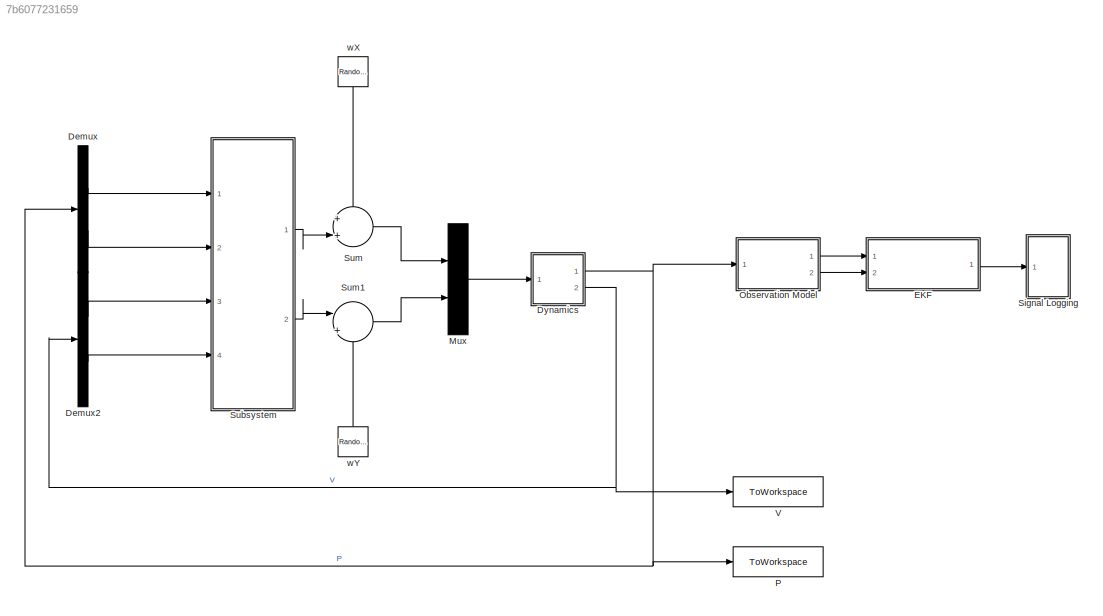
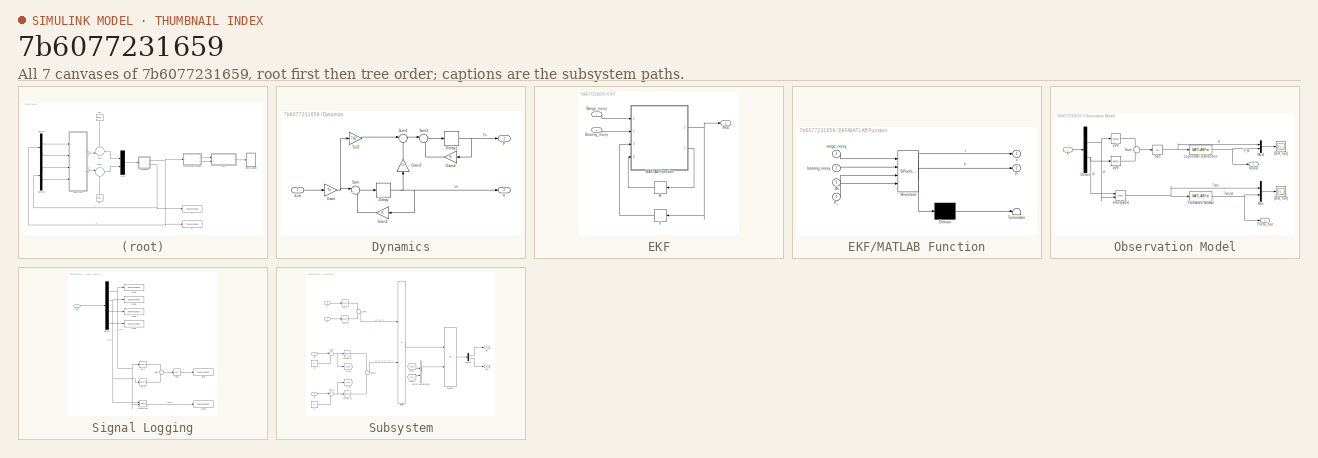
[diagram: thumbnail index - all 7 canvases of the model, root first then tree order]
MODEL slx_7b6077231659
KIND model
CONFIG AbsTol = auto
CONFIG EnableMultiTasking = off
CONFIG FixedStep = Ts
CONFIG MaxStep = auto
CONFIG MinStep = auto
CONFIG RelTol = 1e-3
CONFIG SampleTimeConstraint = Unconstrained
CONFIG Solver = FixedStepDiscrete
CONFIG SolverName = FixedStepDiscrete
CONFIG StartTime = 0.0
CONFIG StopTime = TFinal
BLOCK [Demux] Demux
  DisplayOption = bar
  Outputs = 2
  Ports = [1, 2]
BLOCK [Demux] Demux2
  DisplayOption = bar
  Outputs = 2
  Ports = [1, 2]
BLOCK [SubSystem] Dynamics
  Ports = [1, 2]
  RequestExecContextInheritance = off
BLOCK [Delay] Dynamics/Delay
  DelayLength = 1
  InitialCondition = 0
  InputPortMap = u0
  Ports = [1, 1]
BLOCK [Delay] Dynamics/Delay1
  DelayLength = 1
  InitialCondition = 0
  InputPortMap = u0
  Ports = [1, 1]
BLOCK [Gain] Dynamics/Gain
  Gain = Ts
  OutDataTypeStr = Inherit: Inherit via internal rule
  ParamDataTypeStr = Inherit: Inherit via internal rule
  SaturateOnIntegerOverflow = off
BLOCK [Gain] Dynamics/Gain1
  OutDataTypeStr = Inherit: Inherit via internal rule
  ParamDataTypeStr = Inherit: Inherit via internal rule
  SaturateOnIntegerOverflow = off
BLOCK [Gain] Dynamics/Gain3
  Gain = Ts
  OutDataTypeStr = Inherit: Inherit via internal rule
  ParamDataTypeStr = Inherit: Inherit via internal rule
  SaturateOnIntegerOverflow = off
BLOCK [Gain] Dynamics/Gain4
  OutDataTypeStr = Inherit: Inherit via internal rule
  ParamDataTypeStr = Inherit: Inherit via internal rule
  SaturateOnIntegerOverflow = off
BLOCK [Outport] Dynamics/P
  IconDisplay = Port number
BLOCK [Sum] Dynamics/Sum
  IconShape = round
  InputSameDT = off
  Inputs = |++
  OutDataTypeStr = Inherit: Inherit via internal rule
  Ports = [2, 1]
  SaturateOnIntegerOverflow = off
BLOCK [Sum] Dynamics/Sum1
  IconShape = round
  InputSameDT = off
  Inputs = |++
  OutDataTypeStr = Inherit: Inherit via internal rule
  Ports = [2, 1]
  SaturateOnIntegerOverflow = off
BLOCK [Sum] Dynamics/Sum2
  IconShape = round
  InputSameDT = off
  Inputs = |++
  OutDataTypeStr = Inherit: Inherit via internal rule
  Ports = [2, 1]
  SaturateOnIntegerOverflow = off
BLOCK [Gain] Dynamics/Ts//2
  Gain = Ts/2
  OutDataTypeStr = Inherit: Inherit via internal rule
  ParamDataTypeStr = Inherit: Inherit via internal rule
  SaturateOnIntegerOverflow = off
BLOCK [Outport] Dynamics/V
  IconDisplay = Port number
  Port = 2
BLOCK [Inport] Dynamics/a+w
  IconDisplay = Port number
BLOCK [SubSystem] EKF
  Ports = [2, 1]
  RequestExecContextInheritance = off
BLOCK [Inport] EKF/Bearing_noisy
  IconDisplay = Port number
  Port = 2
BLOCK [Delay] EKF/M
  DelayLength = 1
  InitialCondition = zeros(4,4)
  InputPortMap = u0
  Ports = [1, 1]
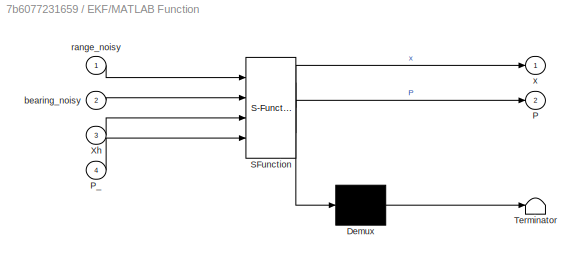
BLOCK [SubSystem] EKF/MATLAB Function
  ErrorFcn = Stateflow.Translate.translate
  PermitHierarchicalResolution = ExplicitOnly
  Ports = [4, 2]
  RequestExecContextInheritance = off
  SFBlockType = MATLAB Function
  TreatAsAtomicUnit = on
BLOCK [Demux] EKF/MATLAB Function/ Demux 
  Outputs = 1
  Ports = [1, 1]
BLOCK [S-Function] EKF/MATLAB Function/ SFunction 
  EnableBusSupport = on
  FunctionName = sf_sfun
  PortCounts = [4 3]
  Ports = [4, 3]
  SFcnIsStateOwnerBlock = off
  SFunctionDeploymentMode = off
  Tag = Stateflow S-Function 2
BLOCK [Terminator] EKF/MATLAB Function/ Terminator 
BLOCK [Outport] EKF/MATLAB Function/P
  IconDisplay = Port number
  Port = 2
BLOCK [Inport] EKF/MATLAB Function/P_
  IconDisplay = Port number
  Port = 4
BLOCK [Inport] EKF/MATLAB Function/Xh
  IconDisplay = Port number
  Port = 3
BLOCK [Inport] EKF/MATLAB Function/bearing_noisy
  IconDisplay = Port number
  Port = 2
BLOCK [Inport] EKF/MATLAB Function/range_noisy
  IconDisplay = Port number
BLOCK [Outport] EKF/MATLAB Function/x
  IconDisplay = Port number
  VectorParamsAs1DForOutWhenUnconnected = off
BLOCK [Inport] EKF/Range_noisy
  IconDisplay = Port number
BLOCK [Delay] EKF/X
  DelayLength = 1
  InitialCondition = [P0;V0]
  InputPortMap = u0
  Ports = [1, 1]
BLOCK [Outport] EKF/Xhat
  IconDisplay = Port number
BLOCK [Mux] Mux
  DisplayOption = bar
  Inputs = 2
  Ports = [2, 1]
BLOCK [SubSystem] Observation Model
  Ports = [1, 2]
  RequestExecContextInheritance = off
BLOCK [Demux] Observation Model/Demux
  DisplayOption = bar
  Outputs = 2
  Ports = [1, 2]
BLOCK [MATLABFcn] Observation Model/Lognormal Distribution 
  MATLABFcn = u*randraw('Lognormal',[0 sigR])
  Ports = [1, 1]
BLOCK [Mux] Observation Model/Mux
  DisplayOption = bar
  Inputs = 2
  Ports = [2, 1]
BLOCK [Mux] Observation Model/Mux1
  DisplayOption = bar
  Inputs = 2
  Ports = [2, 1]
BLOCK [Inport] Observation Model/P
  IconDisplay = Port number
BLOCK [Outport] Observation Model/Rnhat
  IconDisplay = Port number
BLOCK [Sqrt] Observation Model/Sqrt
BLOCK [Sum] Observation Model/Sum
  IconShape = round
  InputSameDT = off
  Inputs = +|+
  OutDataTypeStr = Inherit: Inherit via internal rule
  Ports = [2, 1]
  SaturateOnIntegerOverflow = off
BLOCK [Outport] Observation Model/Theta_hat
  IconDisplay = Port number
  Port = 2
BLOCK [MATLABFcn] Observation Model/Truncated Normal
  MATLABFcn = u+randraw('normaltrunc',[-Z,Z,0,sigB])
  Ports = [1, 1]
BLOCK [Scope] Observation Model/[B;B_hat]
  Floating = off
  NumInputPorts = 1
  Ports = [1]
  ScopeSpecificationString = Simulink.scopes.TimeScopeBlockCfg('CurrentConfiguration', extmgr.ConfigurationSet(extmgr.Configuration('Core','General UI',true),extmgr.Configuration('Core','Source UI',true),extmgr.Configuration('Sources','WiredSimulink',true,'DataLoggingVariableName','ScopeData1'),extmgr.Configuration('Visuals','Time Domain',true,'SerializedDisplays',{struct('MinYLimReal','-3.14561','MaxYLimReal','1.60492','YLab...<+1376ch>
BLOCK [Scope] Observation Model/[R;R_hat]
  Floating = off
  NumInputPorts = 1
  Ports = [1]
  ScopeSpecificationString = Simulink.scopes.TimeScopeBlockCfg('CurrentConfiguration', extmgr.ConfigurationSet(extmgr.Configuration('Core','General UI',true),extmgr.Configuration('Core','Source UI',true),extmgr.Configuration('Sources','WiredSimulink',true),extmgr.Configuration('Visuals','Time Domain',true,'SerializedDisplays',{struct('MinYLimReal','-0.00072','MaxYLimReal','0.0065','YLabelReal','','MinYLimMag','0.00000','MaxYL...<+1354ch>
BLOCK [Trigonometry] Observation Model/atan(py//px)
  Operator = atan2
  Ports = [2, 1]
BLOCK [Math] Observation Model/px^2
  Operator = square
  Ports = [1, 1]
  SignedPower = off
BLOCK [Math] Observation Model/py^2
  Operator = square
  Ports = [1, 1]
  SignedPower = off
BLOCK [ToWorkspace] P
  MaxDataPoints = inf
  Ports = [1]
  SampleTime = -1
  VariableName = P
BLOCK [SubSystem] Signal Logging
  Ports = [1]
  RequestExecContextInheritance = off
BLOCK [Trigonometry] Signal Logging/Atan(py//px)
  Operator = atan2
  Ports = [2, 1]
BLOCK [ToWorkspace] Signal Logging/Azhat
  MaxDataPoints = inf
  Ports = [1]
  SampleTime = -1
  VariableName = Azhat
BLOCK [Demux] Signal Logging/Demux
  DisplayOption = bar
  Ports = [1, 4]
BLOCK [Inport] Signal Logging/Input
  IconDisplay = Port number
BLOCK [ToWorkspace] Signal Logging/Rhat
  MaxDataPoints = inf
  Ports = [1]
  SampleTime = -1
  VariableName = Rhat
BLOCK [Sqrt] Signal Logging/Sqrt
BLOCK [Sum] Signal Logging/Sum
  IconShape = round
  InputSameDT = off
  Inputs = +|+
  OutDataTypeStr = Inherit: Inherit via internal rule
  Ports = [2, 1]
  SaturateOnIntegerOverflow = off
BLOCK [Math] Signal Logging/px^2
  Operator = square
  Ports = [1, 1]
  SignedPower = off
BLOCK [ToWorkspace] Signal Logging/pxhat
  MaxDataPoints = inf
  Ports = [1]
  SampleTime = -1
  VariableName = pxhat
BLOCK [Math] Signal Logging/py^2
  Operator = square
  Ports = [1, 1]
  SignedPower = off
BLOCK [ToWorkspace] Signal Logging/pyhat
  MaxDataPoints = inf
  Ports = [1]
  SampleTime = -1
  VariableName = pyhat
BLOCK [ToWorkspace] Signal Logging/vxhat
  MaxDataPoints = inf
  Ports = [1]
  SampleTime = -1
  VariableName = vxhat
BLOCK [ToWorkspace] Signal Logging/vyhat
  MaxDataPoints = inf
  Ports = [1]
  SampleTime = -1
  VariableName = vyhat
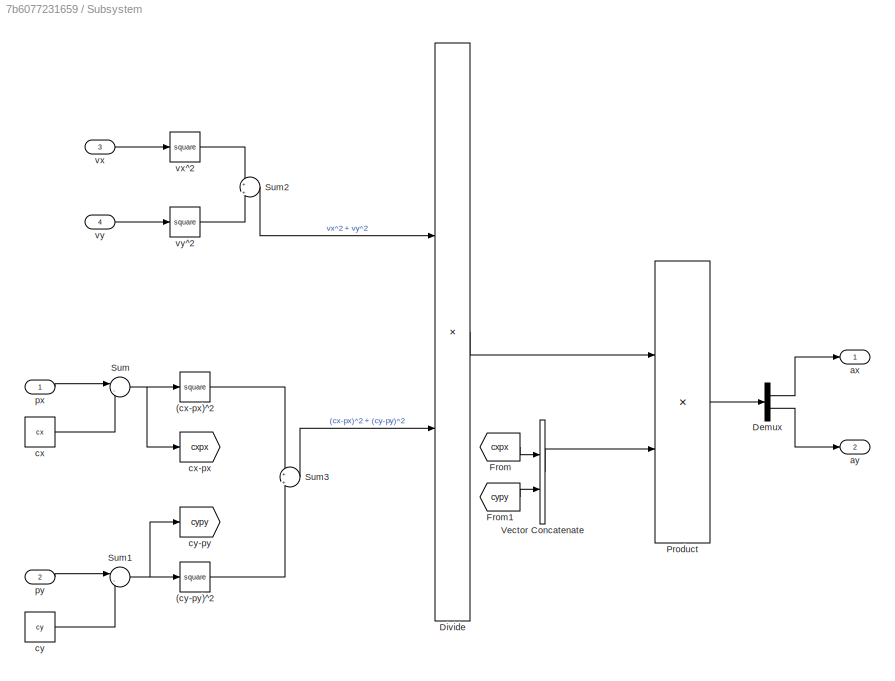
BLOCK [SubSystem] Subsystem
  Ports = [4, 2]
  RequestExecContextInheritance = off
BLOCK [Math] Subsystem/(cx-px)^2
  Operator = square
  Ports = [1, 1]
  SignedPower = off
BLOCK [Math] Subsystem/(cy-py)^2
  Operator = square
  Ports = [1, 1]
  SignedPower = off
BLOCK [Demux] Subsystem/Demux
  DisplayOption = bar
  Outputs = 2
  Ports = [1, 2]
BLOCK [Product] Subsystem/Divide
  InputSameDT = off
  Inputs = */
  OutDataTypeStr = Inherit: Inherit via internal rule
  Ports = [2, 1]
  RndMeth = Floor
  SaturateOnIntegerOverflow = off
BLOCK [From] Subsystem/From
  GotoTag = cxpx
BLOCK [From] Subsystem/From1
  GotoTag = cypy
BLOCK [Product] Subsystem/Product
  InputSameDT = off
  OutDataTypeStr = Inherit: Inherit via internal rule
  Ports = [2, 1]
  RndMeth = Floor
  SaturateOnIntegerOverflow = off
BLOCK [Sum] Subsystem/Sum
  IconShape = round
  InputSameDT = off
  Inputs = |-+
  OutDataTypeStr = Inherit: Inherit via internal rule
  Ports = [2, 1]
  SaturateOnIntegerOverflow = off
BLOCK [Sum] Subsystem/Sum1
  IconShape = round
  InputSameDT = off
  Inputs = |-+
  OutDataTypeStr = Inherit: Inherit via internal rule
  Ports = [2, 1]
  SaturateOnIntegerOverflow = off
BLOCK [Sum] Subsystem/Sum2
  IconShape = round
  InputSameDT = off
  Inputs = +|+
  OutDataTypeStr = Inherit: Inherit via internal rule
  Ports = [2, 1]
  SaturateOnIntegerOverflow = off
BLOCK [Sum] Subsystem/Sum3
  IconShape = round
  InputSameDT = off
  Inputs = +|+
  OutDataTypeStr = Inherit: Inherit via internal rule
  Ports = [2, 1]
  SaturateOnIntegerOverflow = off
BLOCK [Concatenate] Subsystem/Vector Concatenate
  Ports = [2, 1]
BLOCK [Outport] Subsystem/ax
  IconDisplay = Port number
BLOCK [Outport] Subsystem/ay
  IconDisplay = Port number
  Port = 2
BLOCK [Constant] Subsystem/cx 
  Value = cx
BLOCK [Goto] Subsystem/cx-px
  GotoTag = cxpx
BLOCK [Constant] Subsystem/cy
  Value = cy
BLOCK [Goto] Subsystem/cy-py
  GotoTag = cypy
BLOCK [Inport] Subsystem/px
  IconDisplay = Port number
BLOCK [Inport] Subsystem/py 
  IconDisplay = Port number
  Port = 2
BLOCK [Inport] Subsystem/vx
  IconDisplay = Port number
  Port = 3
BLOCK [Math] Subsystem/vx^2
  Operator = square
  Ports = [1, 1]
  SignedPower = off
BLOCK [Inport] Subsystem/vy
  IconDisplay = Port number
  Port = 4
BLOCK [Math] Subsystem/vy^2
  Operator = square
  Ports = [1, 1]
  SignedPower = off
BLOCK [Sum] Sum
  IconShape = round
  InputSameDT = off
  Inputs = ++|
  OutDataTypeStr = Inherit: Inherit via internal rule
  Ports = [2, 1]
  SaturateOnIntegerOverflow = off
BLOCK [Sum] Sum1
  IconShape = round
  InputSameDT = off
  Inputs = |++
  OutDataTypeStr = Inherit: Inherit via internal rule
  Ports = [2, 1]
  SaturateOnIntegerOverflow = off
BLOCK [ToWorkspace] V
  MaxDataPoints = inf
  Ports = [1]
  SampleTime = -1
  VariableName = V
BLOCK [RandomNumber] wX
  Mean = muWx
  SampleTime = Ts
  Seed = 2^wx
  Variance = sigWx
BLOCK [RandomNumber] wY
  Mean = muWy
  SampleTime = Ts
  Seed = 2^wy
  Variance = sigWy
LINE Demux2:1 -> Subsystem:3
LINE Demux2:2 -> Subsystem:4
LINE Demux:1 -> Subsystem:1
LINE Demux:2 -> Subsystem:2
NET Dynamics/Delay1:1 -> Dynamics/Gain4:1, Dynamics/P:1
NET Dynamics/Delay:1 -> Dynamics/Gain1:1, Dynamics/Gain3:1, Dynamics/V:1
LINE Dynamics/Gain1:1 -> Dynamics/Sum:2
LINE Dynamics/Gain3:1 -> Dynamics/Sum1:2
LINE Dynamics/Gain4:1 -> Dynamics/Sum2:2
NET Dynamics/Gain:1 -> Dynamics/Sum:1, Dynamics/Ts//2:1
LINE Dynamics/Sum1:1 -> Dynamics/Sum2:1
LINE Dynamics/Sum2:1 -> Dynamics/Delay1:1
LINE Dynamics/Sum:1 -> Dynamics/Delay:1
LINE Dynamics/Ts//2:1 -> Dynamics/Sum1:1
LINE Dynamics/a+w:1 -> Dynamics/Gain:1
NET Dynamics:1 -> Demux:1, Observation Model:1, P:1
NET Dynamics:2 -> Demux2:1, V:1
LINE EKF/Bearing_noisy:1 -> EKF/MATLAB Function:2
LINE EKF/M:1 -> EKF/MATLAB Function:4
NET EKF/MATLAB Function:1 -> EKF/X:1, EKF/Xhat:1
LINE EKF/MATLAB Function:2 -> EKF/M:1
LINE EKF/Range_noisy:1 -> EKF/MATLAB Function:1
LINE EKF/X:1 -> EKF/MATLAB Function:3
LINE EKF:1 -> Signal Logging:1
LINE Mux:1 -> Dynamics:1
NET Observation Model/Demux:1 -> Observation Model/atan(py//px):2, Observation Model/px^2:1
NET Observation Model/Demux:2 -> Observation Model/atan(py//px):1, Observation Model/py^2:1
NET Observation Model/Lognormal Distribution :1 -> Observation Model/Mux1:2, Observation Model/Rnhat:1
LINE Observation Model/Mux1:1 -> Observation Model/[R;R_hat]:1
LINE Observation Model/Mux:1 -> Observation Model/[B;B_hat]:1
LINE Observation Model/P:1 -> Observation Model/Demux:1
NET Observation Model/Sqrt:1 -> Observation Model/Lognormal Distribution :1, Observation Model/Mux1:1
LINE Observation Model/Sum:1 -> Observation Model/Sqrt:1
NET Observation Model/Truncated Normal:1 -> Observation Model/Mux:2, Observation Model/Theta_hat:1
NET Observation Model/atan(py//px):1 -> Observation Model/Mux:1, Observation Model/Truncated Normal:1
LINE Observation Model/px^2:1 -> Observation Model/Sum:1
LINE Observation Model/py^2:1 -> Observation Model/Sum:2
LINE Observation Model:1 -> EKF:1
LINE Observation Model:2 -> EKF:2
LINE Signal Logging/Atan(py//px):1 -> Signal Logging/Azhat:1
NET Signal Logging/Demux:1 -> Signal Logging/Atan(py//px):2, Signal Logging/px^2:1, Signal Logging/pxhat:1
NET Signal Logging/Demux:2 -> Signal Logging/Atan(py//px):1, Signal Logging/py^2:1, Signal Logging/pyhat:1
LINE Signal Logging/Demux:3 -> Signal Logging/vxhat:1
LINE Signal Logging/Demux:4 -> Signal Logging/vyhat:1
LINE Signal Logging/Input:1 -> Signal Logging/Demux:1
LINE Signal Logging/Sqrt:1 -> Signal Logging/Rhat:1
LINE Signal Logging/Sum:1 -> Signal Logging/Sqrt:1
LINE Signal Logging/px^2:1 -> Signal Logging/Sum:1
LINE Signal Logging/py^2:1 -> Signal Logging/Sum:2
LINE Subsystem/(cx-px)^2:1 -> Subsystem/Sum3:1
LINE Subsystem/(cy-py)^2:1 -> Subsystem/Sum3:2
LINE Subsystem/Demux:1 -> Subsystem/ax:1
LINE Subsystem/Demux:2 -> Subsystem/ay:1
LINE Subsystem/Divide:1 -> Subsystem/Product:1
LINE Subsystem/From1:1 -> Subsystem/Vector Concatenate:2
LINE Subsystem/From:1 -> Subsystem/Vector Concatenate:1
LINE Subsystem/Product:1 -> Subsystem/Demux:1
NET Subsystem/Sum1:1 -> Subsystem/(cy-py)^2:1, Subsystem/cy-py:1
LINE Subsystem/Sum2:1 -> Subsystem/Divide:1
LINE Subsystem/Sum3:1 -> Subsystem/Divide:2
NET Subsystem/Sum:1 -> Subsystem/(cx-px)^2:1, Subsystem/cx-px:1
LINE Subsystem/Vector Concatenate:1 -> Subsystem/Product:2
LINE Subsystem/cx :1 -> Subsystem/Sum:2
LINE Subsystem/cy:1 -> Subsystem/Sum1:2
LINE Subsystem/px:1 -> Subsystem/Sum:1
LINE Subsystem/py :1 -> Subsystem/Sum1:1
LINE Subsystem/vx:1 -> Subsystem/vx^2:1
LINE Subsystem/vx^2:1 -> Subsystem/Sum2:1
LINE Subsystem/vy:1 -> Subsystem/vy^2:1
LINE Subsystem/vy^2:1 -> Subsystem/Sum2:2
LINE Subsystem:1 -> Sum:2
LINE Subsystem:2 -> Sum1:1
LINE Sum1:1 -> Mux:2
LINE Sum:1 -> Mux:1
LINE wX:1 -> Sum:1
LINE wY:1 -> Sum1:2
note: NET lines group one-source signal fan-out (src -> all destinations, sorted); 1:1 wires keep LINE
CHART EKF/MATLAB Function states=1 transitions=1
  STATE_LABEL 'eML_blk_kernel()'
  STATE_LABEL 'SCRIPT:\nfunction [x,P] = EKF(range_noisy,bearing_noisy,Xh,P_)\n\nTs = 1/100;\n\nsigWx = 1e-7;\nsigWy = 1e-7;\n\nsigR = 1e-1;\nsigB = 1e-1;\nQ = [sigWx 0;0 sigWy];\nR = [sigB 0;0 sigB];\n\ncx = 2;\ncy = 2;\n\npx = Xh(1);\npy = Xh(2);\nvx = Xh(3);\nvy = Xh(4);\n\nA= Ajacob(cx,cy,px,py,vx,vy,Ts);\nL = Lmat(Ts);\n\nPos = [px;py];\nVel = [vx;vy];\n\nax = ((vx^2 + vy^2)*(cx - px))/((cx-px)^2 + (cy-py)^2);\nay = ((vx^2 + vy^2)*(cy...<+1461ch>'
